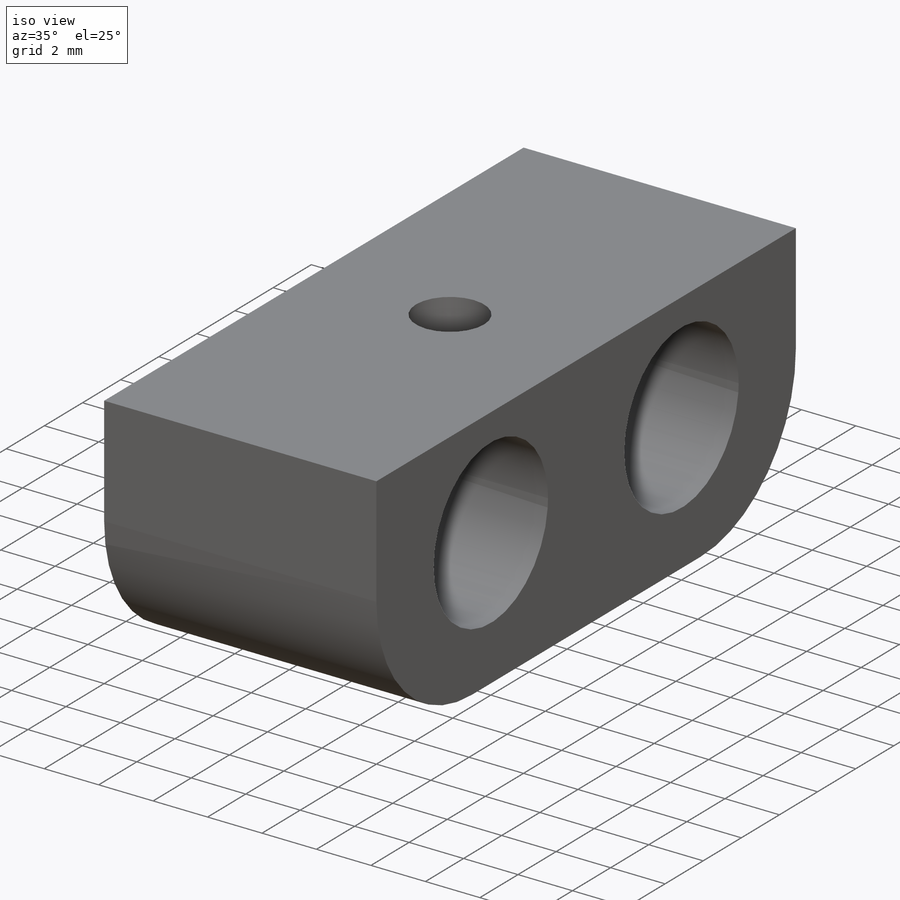
[diagram: iso view]
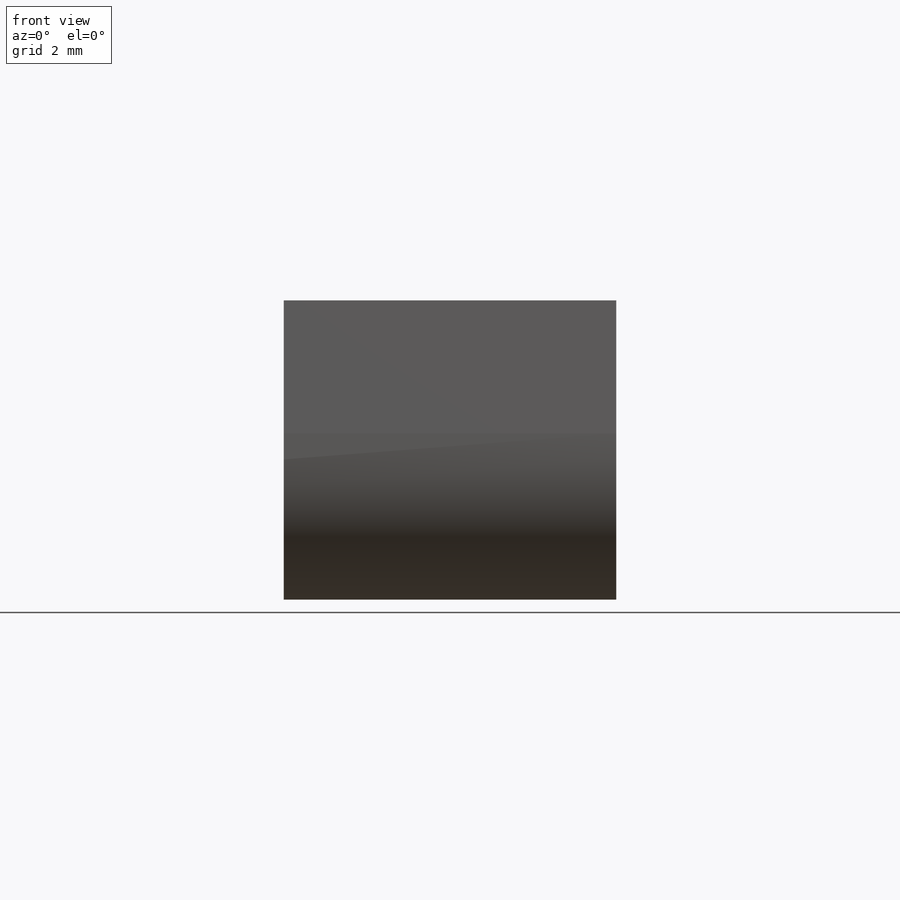
[diagram: front view]
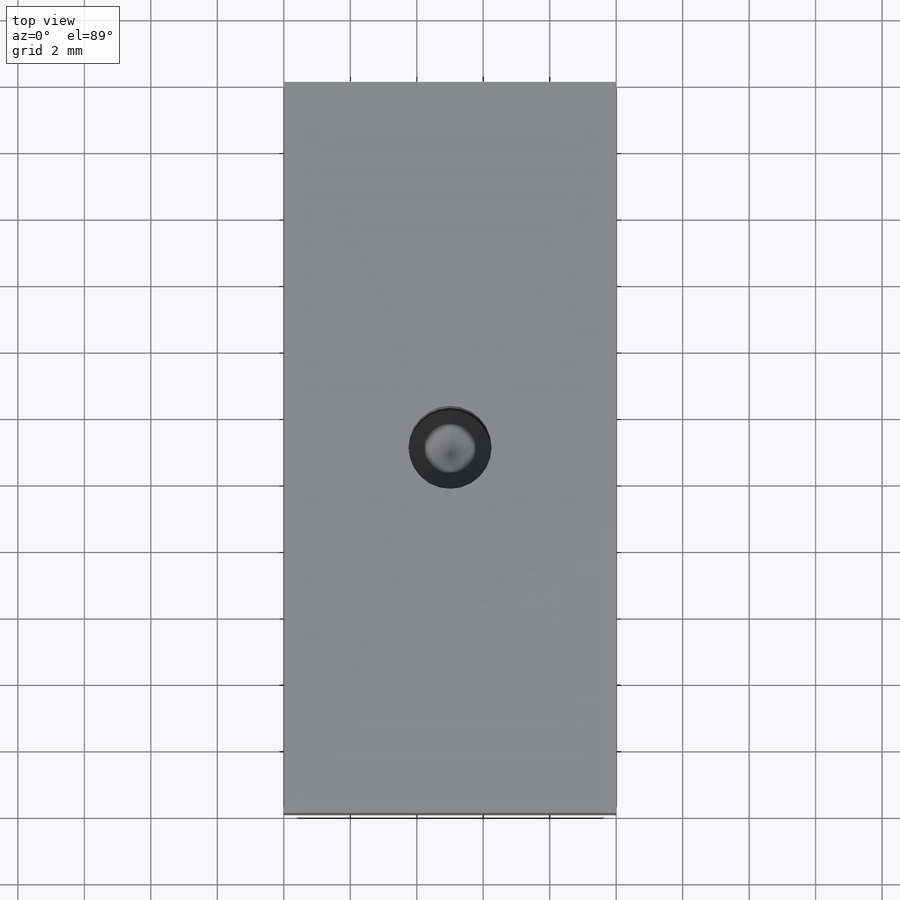
[diagram: top view]
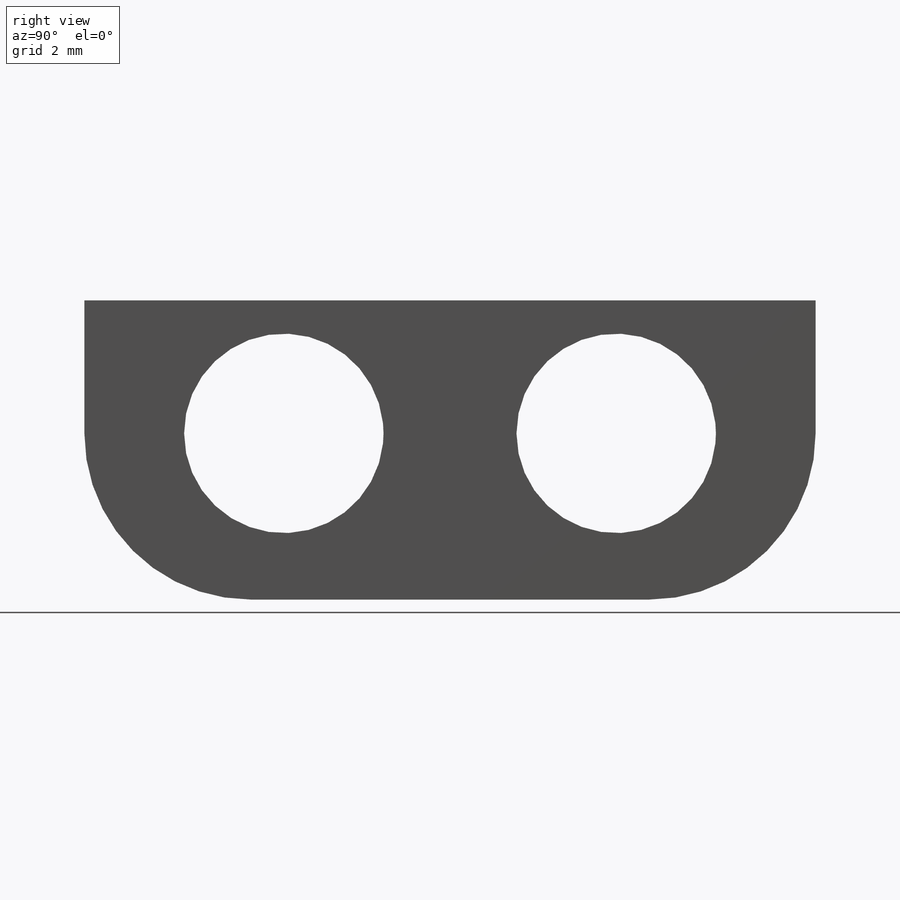
[diagram: right view]
SOLIDWORKS PART (.sldprt)
format: sldprt  version: not decoded by parser v0  size: 184,832 bytes
history: native  units: mm
features: sketch x3, material x1, extrude x1, fillet x1, hole x1, thread x1 (+12 scaffold rows collapsed)
feature tree (20):
  scaffold x12  (default folders/planes/origin — collapsed)
  material  "7050-T73510"
  sketch  "Sketch1"  dims[D1=6.0mm D2=6.0mm D3=10.0mm D4=4.0mm D5=5.0mm D6=6.0mm D7=6.0mm]
  extrude  "Boss-Extrude1"  Depth=10mm
  fillet  "Fillet1"  Radius=5mm
  hole  "M3 Tapped Hole1"  Diameter=2.5mm Depth=7.5mm
  sketch  "Sketch3"  dims[D1=~1.378516mm]
  sketch  "Sketch2"  dims[hole-wizard template sketch: 50 standard entries collapsed; hole parameters above]
  thread  "Hole Thread1"  Diameter=6mm  [1 undecoded]
decode coverage: 7 of 7 modeling features carry decoded parameters
note: ~ marks probable driven/reference dimensions
note: 1 parameter value undecoded
note: suppression state not decoded; provenance and decode notes live in map.json
